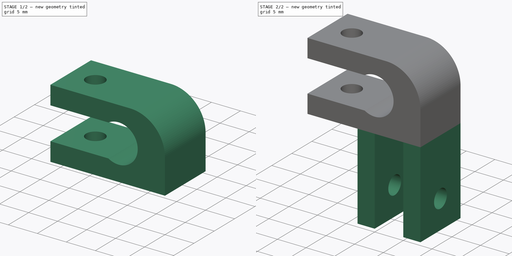
[diagram: build sequence overview — one tinted view per stage of 2, left to right]
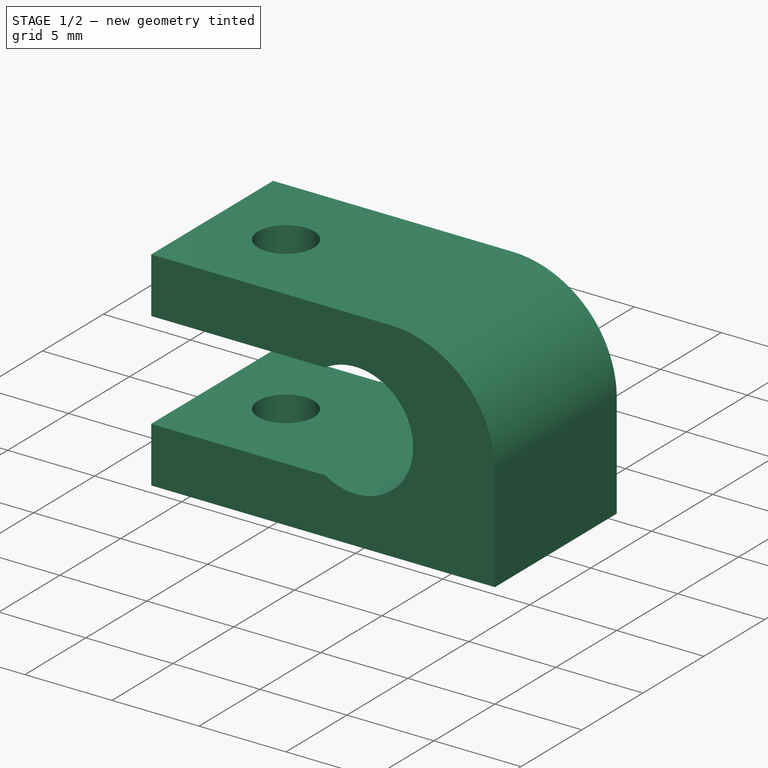
[diagram: stage 1 of 2 — iso view after this stage's code; geometry added in this stage tinted green]
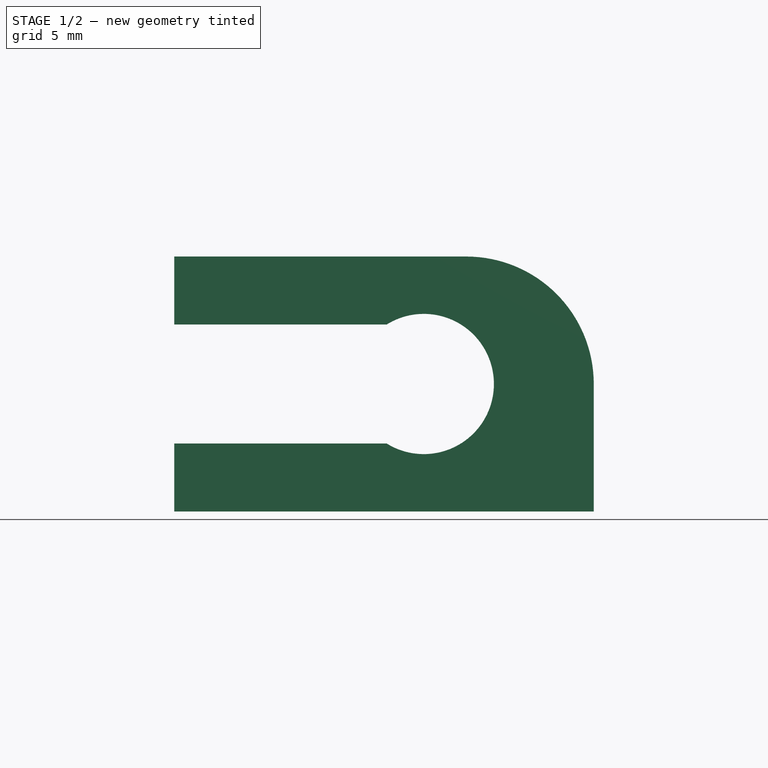
[diagram: stage 1 of 2 — front view after this stage's code; geometry added in this stage tinted green]
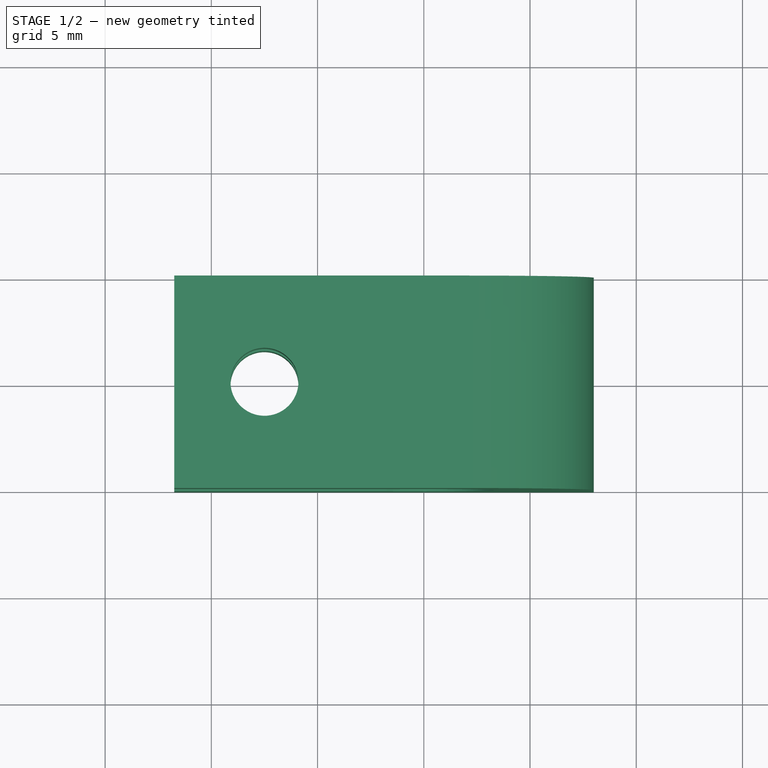
[diagram: stage 1 of 2 — top view after this stage's code; geometry added in this stage tinted green]
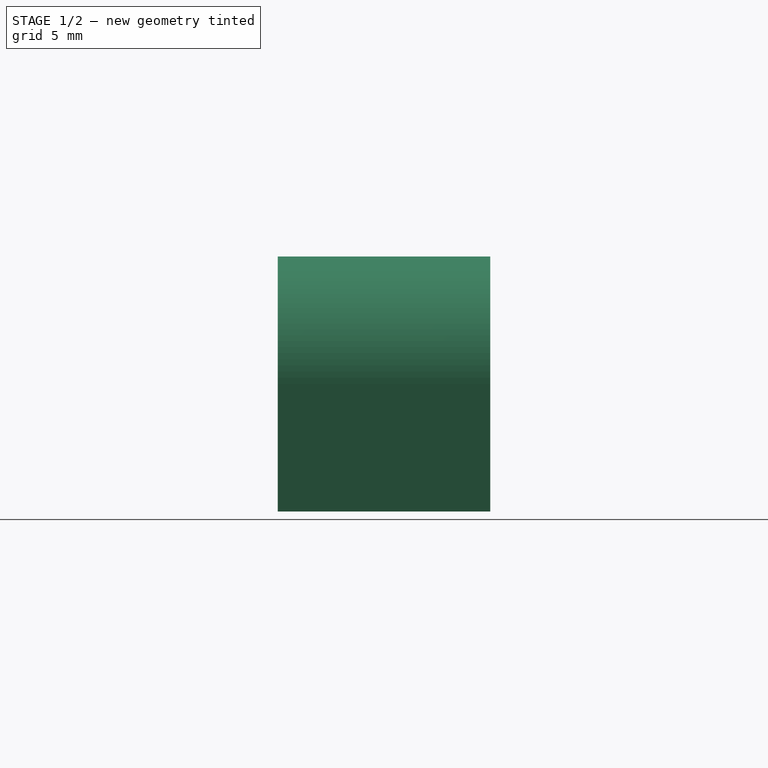
[diagram: stage 1 of 2 — right view after this stage's code; geometry added in this stage tinted green]
FCSTD DOCUMENT  (FreeCAD 0.18R14090 (Git))
Label: ExtruderDriveHolder_Clip
License: All rights reserved
LicenseURL: http://en.wikipedia.org/wiki/All_rights_reserved
objects: Sketcher::SketchObject×4, PartDesign::Pad×2, PartDesign::Pocket×2, PartDesign::Body×1, App::Part×1
note: 13 computed .brp shape members not serialized (recipe doc carries the construction recipe); baked Part::Feature solids carry a one-line shape summary decoded from their .brp

FEATURE [Sketcher::SketchObject] Sketch003  label="ClipBaseSketch"
  MapMode = 5
  Placement = pos=(0,0,0) rot=(1,0,0;1.5708rad)
  sketch-geometry (9):
    g0: LineSegment StartX=8 StartY=-6 StartZ=0 EndX=-11.7464 EndY=-6 EndZ=0
    g1: LineSegment StartX=-11.7464 StartY=-2.8 StartZ=0 EndX=-11.7464 EndY=-6 EndZ=0
    g2: ArcOfCircle CenterX=0 CenterY=0 CenterZ=0 NormalX=0 NormalY=0 NormalZ=1 AngleXU=0 Radius=3.3 StartAngle=4.15471 EndAngle=8.41166
    g3: LineSegment StartX=-1.74642 StartY=-2.8 StartZ=0 EndX=-11.7464 EndY=-2.8 EndZ=0
    g4: LineSegment StartX=-1.74642 StartY=2.8 StartZ=0 EndX=-11.7464 EndY=2.8 EndZ=0
    g5: LineSegment StartX=2 StartY=6 StartZ=0 EndX=-11.7464 EndY=6 EndZ=0
    g6: LineSegment StartX=-11.7464 StartY=2.8 StartZ=0 EndX=-11.7464 EndY=6 EndZ=0
    g7: LineSegment StartX=8 StartY=0 StartZ=0 EndX=8 EndY=-6 EndZ=0
    g8: ArcOfCircle CenterX=2 CenterY=0 CenterZ=0 NormalX=0 NormalY=0 NormalZ=1 AngleXU=0 Radius=6 StartAngle=0 EndAngle=1.5708
  constraints (28):
    c: Horizontal(g0)
    c: Coincident(g1,g0)
    c: Radius(g2) = 3.3
    c: Symmetric(g2,g2,g-1)
    c: Coincident(g3,g2)
    c: Horizontal(g3)
    c: Coincident(g4,g2)
    c: Horizontal(g4)
    c: Horizontal(g5)
    c: Coincident(g6,g4)
    c: Coincident(g6,g5)
    c: Vertical(g6)
    c: Coincident(g1,g3)
    c: Vertical(g1)
    c: Equal(g4,g3)
    c: Distance(g2,g2) = 5.6
    c: Coincident(g2,g-1)
    c: Equal(g1,g6)
    c: Distance(g0,g5) = 12
    c: Vertical(g7)
    c: Distance(g4) = 10
    c: Coincident(g7,g0)
    c: Distance(g2,g7) = 8
    c: PointOnObject(g7,g-1)
    c: PointOnObject(g8,g-1)
    c: Coincident(g8,g7)
    c: Coincident(g8,g5)
    c: Angle(g8) = 1.5708
FEATURE [PartDesign::Pad] Pad  label="ClipBasePad"
  Length = 10
  Length2 = 100
  Placement = pos=(0,0,0) rot=(1,0,0;1.5708rad)
  Profile = -> Sketch003
  Type = 0
FEATURE [Sketcher::SketchObject] Sketch005  label="ScrewHoleSketch"
  MapMode = 5
  Support = -> [XY_Plane001]
  sketch-geometry (1):
    g0: Circle CenterX=-7.5 CenterY=-5 CenterZ=0 NormalX=0 NormalY=0 NormalZ=1 AngleXU=0 Radius=1.6
  constraints (3):
    c: Distance(g0,g-1) = 5
    c: Distance(g0,g-2) = 7.5
    c: Radius(g0) = 1.6
FEATURE [PartDesign::Pocket] Pocket001  label="ScrewHolePocket"
  BaseFeature = -> Pad
  Length = 5
  Length2 = 100
  Midplane = true
  Placement = pos=(0,0,0) rot=(1,0,0;1.5708rad)
  Profile = -> Sketch005
  Type = 1
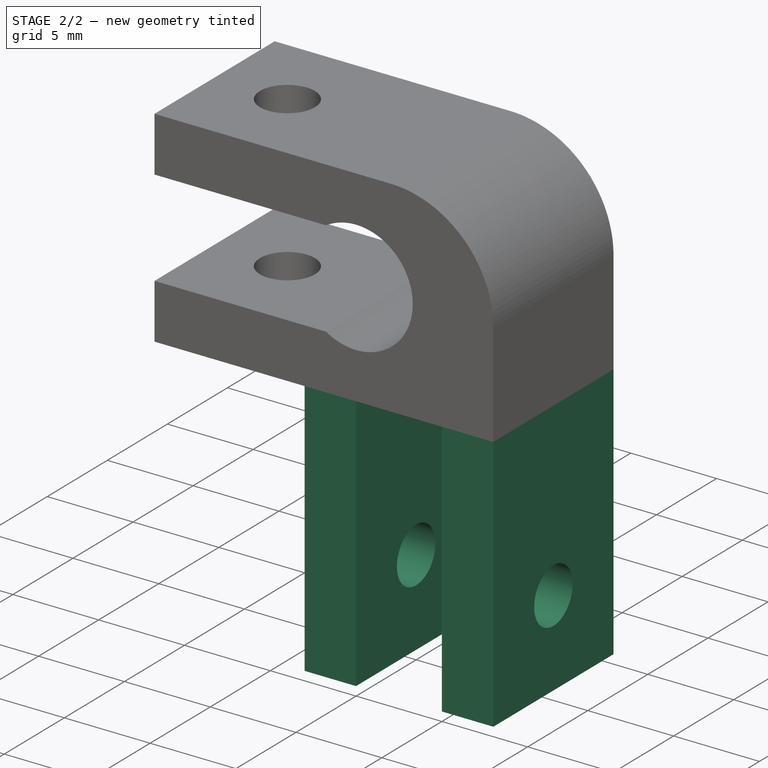
[diagram: stage 2 of 2 — iso view after this stage's code; geometry added in this stage tinted green]
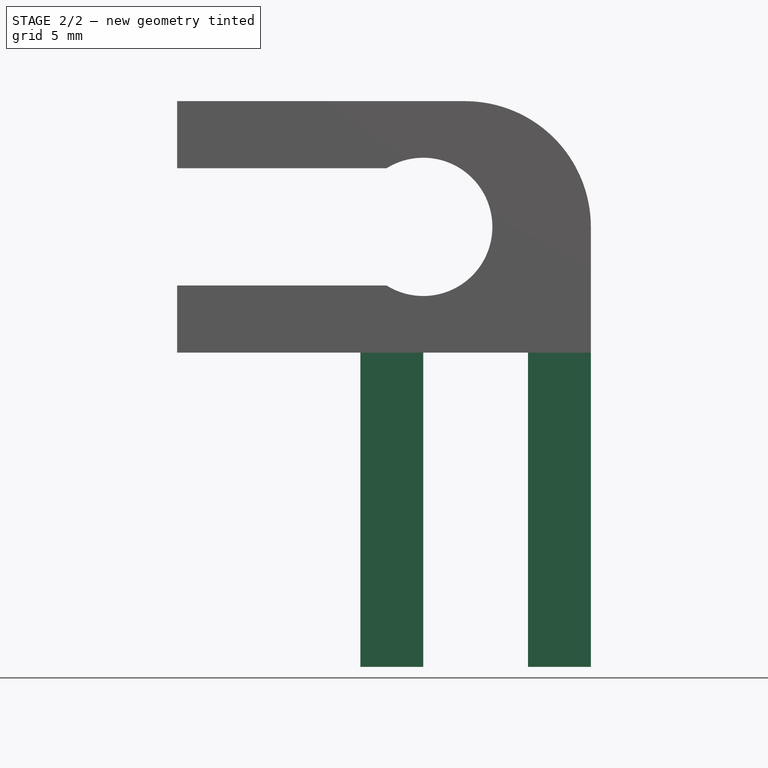
[diagram: stage 2 of 2 — front view after this stage's code; geometry added in this stage tinted green]
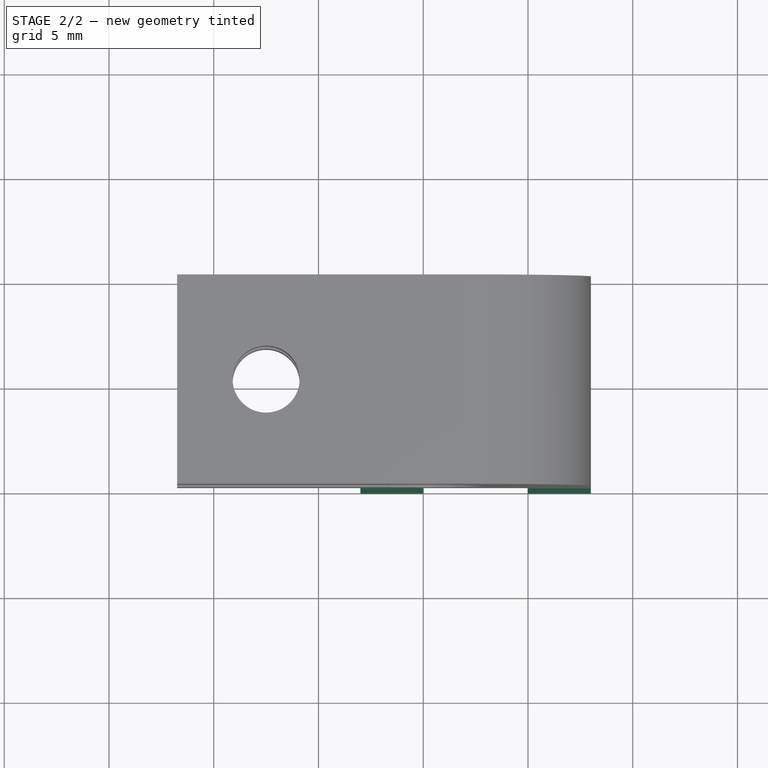
[diagram: stage 2 of 2 — top view after this stage's code; geometry added in this stage tinted green]
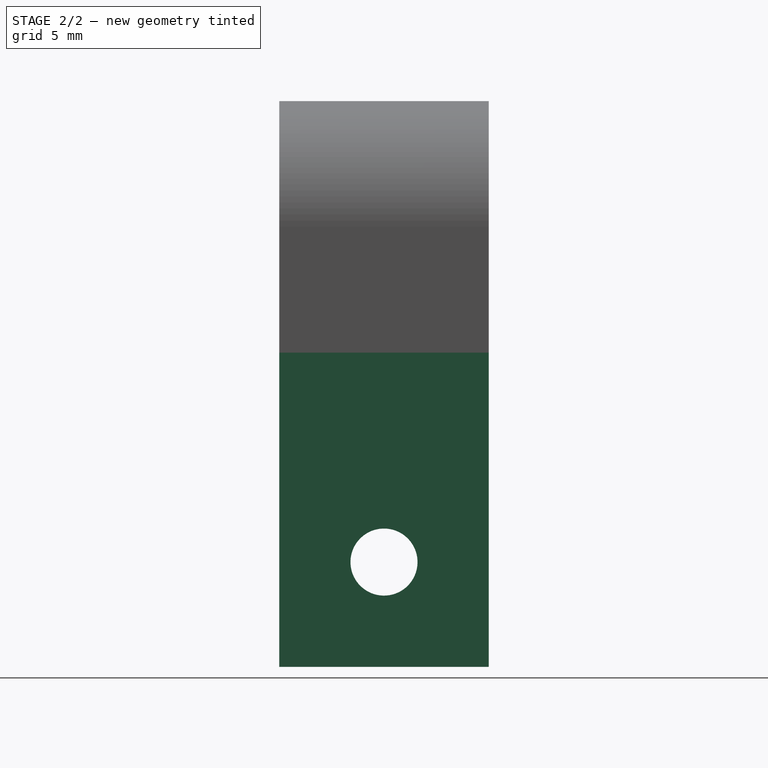
[diagram: stage 2 of 2 — right view after this stage's code; geometry added in this stage tinted green]
FEATURE [Sketcher::SketchObject] Sketch  label="ExtruderClipSketch"
  ExternalGeometry = -> [Sketch003]
  MapMode = 5
  Placement = pos=(0,0,0) rot=(1,0,0;1.5708rad)
  Support = -> [XZ_Plane001]
  sketch-geometry (8):
    g0: LineSegment StartX=8 StartY=-6 StartZ=0 EndX=5 EndY=-6 EndZ=0
    g1: LineSegment StartX=5 StartY=-6 StartZ=0 EndX=5 EndY=-21 EndZ=0
    g2: LineSegment StartX=5 StartY=-21 StartZ=0 EndX=8 EndY=-21 EndZ=0
    g3: LineSegment StartX=8 StartY=-21 StartZ=0 EndX=8 EndY=-6 EndZ=0
    g4: LineSegment StartX=0 StartY=-6 StartZ=0 EndX=-3 EndY=-6 EndZ=0
    g5: LineSegment StartX=-3 StartY=-6 StartZ=0 EndX=-3 EndY=-21 EndZ=0
    g6: LineSegment StartX=-3 StartY=-21 StartZ=0 EndX=0 EndY=-21 EndZ=0
    g7: LineSegment StartX=0 StartY=-21 StartZ=0 EndX=0 EndY=-6 EndZ=0
  constraints (23):
    c: Coincident(g0,g1)
    c: Coincident(g1,g2)
    c: Coincident(g2,g3)
    c: Coincident(g3,g0)
    c: Horizontal(g0)
    c: Horizontal(g2)
    c: Vertical(g1)
    c: Vertical(g3)
    c: Coincident(g0,g-3)
    c: Coincident(g4,g5)
    c: Coincident(g5,g6)
    c: Coincident(g6,g7)
    c: Coincident(g7,g4)
    c: Horizontal(g4)
    c: Horizontal(g6)
    c: Vertical(g5)
    c: Vertical(g7)
    c: PointOnObject(g4,g-3)
    c: Equal(g3,g7)
    c: Equal(g2,g6)
    c: Distance(g0,g4) = 5
    c: Distance(g0) = 3
    c: Distance(g3) = 15
FEATURE [PartDesign::Pad] Pad001  label="ExtruderClipPad"
  BaseFeature = -> Pocket001
  Length = 10
  Length2 = 100
  Placement = pos=(0,0,0) rot=(1,0,0;1.5708rad)
  Profile = -> Sketch
  Type = 0
FEATURE [Sketcher::SketchObject] Sketch006  label="ExtruderScrewHoleSketch"
  ExternalGeometry = -> [Sketch]
  MapMode = 5
  Placement = pos=(0,0,0) rot=(0.57735,0.57735,0.57735;2.0944rad)
  Support = -> [YZ_Plane001]
  sketch-geometry (3):
    g0: Circle CenterX=-5 CenterY=-16 CenterZ=0 NormalX=0 NormalY=0 NormalZ=1 AngleXU=0 Radius=1.6
    g1: LineSegment [constr] StartX=-5 StartY=-16 StartZ=0 EndX=-5 EndY=-21 EndZ=0
    g2: LineSegment [constr] StartX=-5 StartY=-21 StartZ=0 EndX=5e-12 EndY=-21 EndZ=0
  constraints (8):
    c: Coincident(g1,g0)
    c: Vertical(g1)
    c: Coincident(g2,g1)
    c: Horizontal(g2)
    c: Equal(g2,g1)
    c: Distance(g2) = 5
    c: Radius(g0) = 1.6
    c: Coincident(g2,g-3)
FEATURE [PartDesign::Pocket] Pocket  label="ExtruderScrewHolePocket"
  BaseFeature = -> Pad001
  Length = 5
  Length2 = 100
  Midplane = true
  Placement = pos=(0,0,0) rot=(1,0,0;1.5708rad)
  Profile = -> Sketch006
  Reversed = true
  Type = 1
FEATURE [PartDesign::Body] Body  label="ClipBody"
  Group = -> [Pad,Sketch003,Pocket001,Sketch005,Sketch,Pad001,Sketch006,Pocket]
  Origin = -> Origin001
  Tip = -> Pocket
FEATURE [App::Part] Part  label="ClipPart"
  Group = -> [Body]
  License = CC BY 3.0
  LicenseURL = http://creativecommons.org/licenses/by/3.0/
  Origin = -> Origin
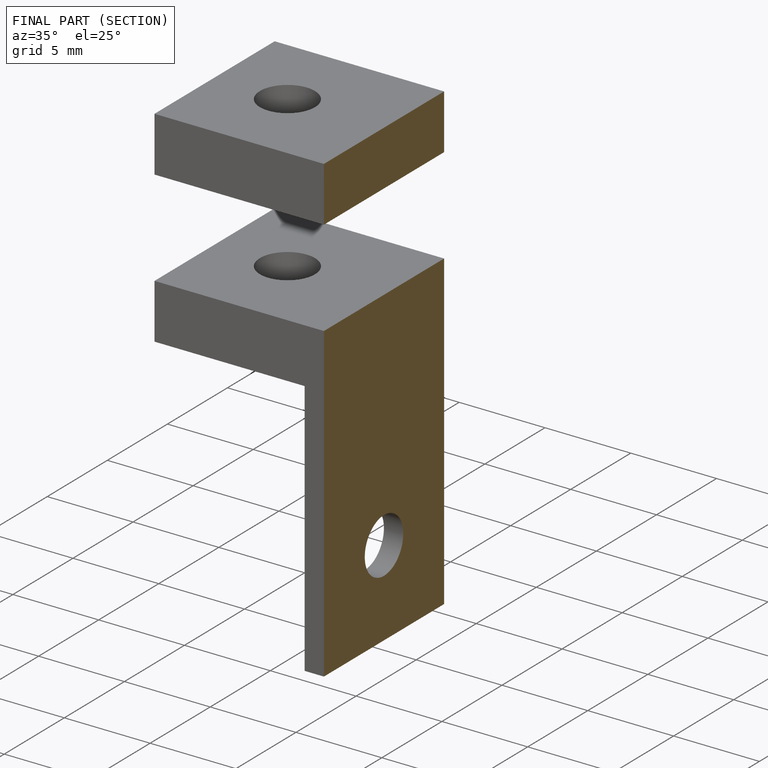
[diagram: finished part — half-section view (interior)]
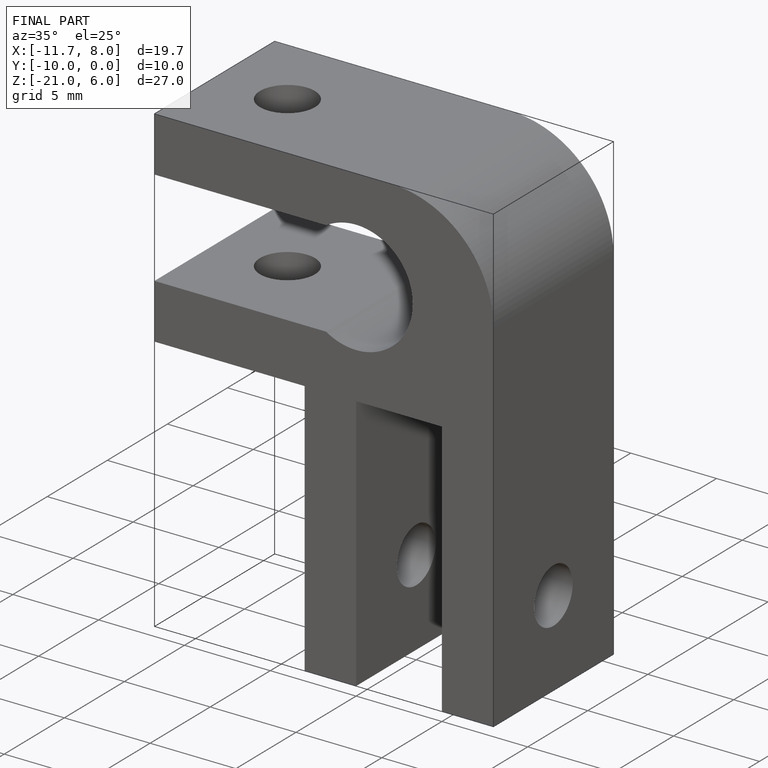
[diagram: finished part — iso view with bounding-box wireframe]
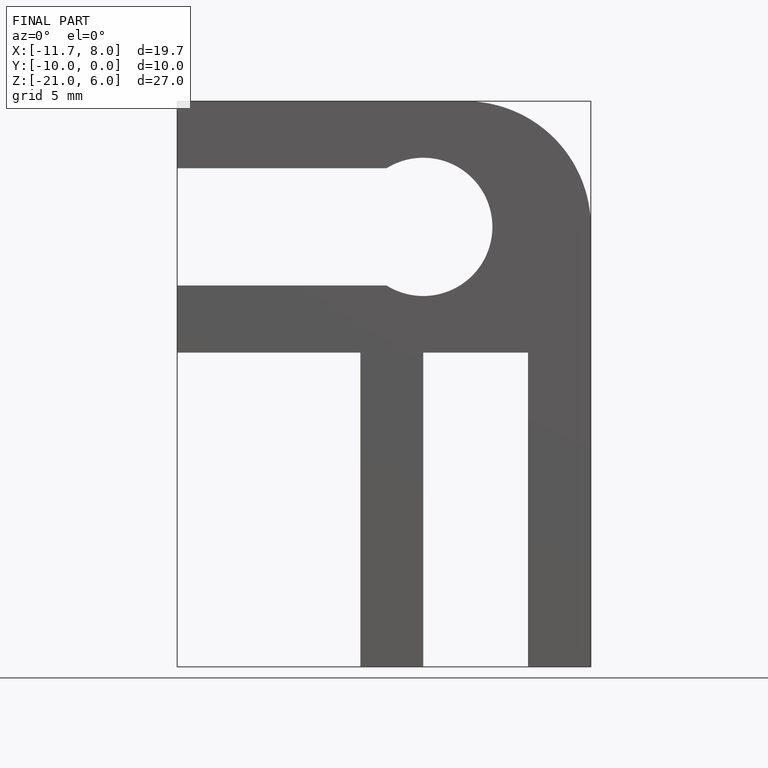
[diagram: finished part — front view with bounding-box wireframe]
